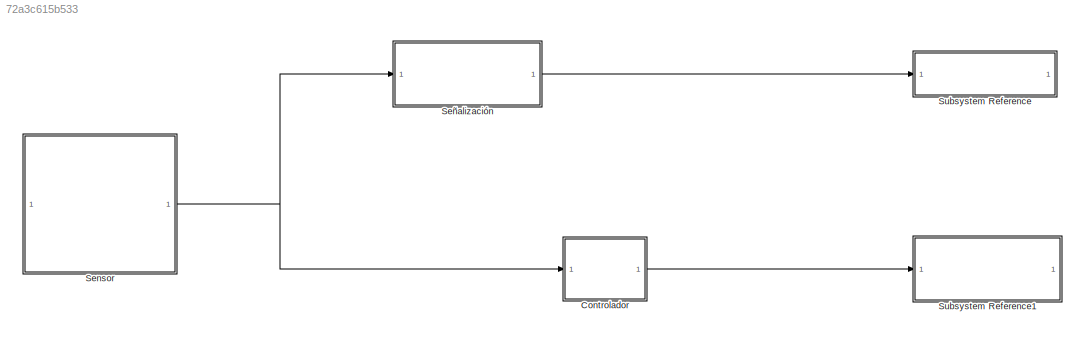
MODEL slx_72a3c615b533
KIND model
CONFIG AbsTol = auto
CONFIG EnableMultiTasking = off
CONFIG FixedStep = auto
CONFIG MaxStep = auto
CONFIG MinStep = auto
CONFIG RelTol = 1e-3
CONFIG SampleTimeConstraint = Unconstrained
CONFIG SolverName = FixedStepAuto
CONFIG StartTime = 0.0
CONFIG StopTime = inf
BLOCK [SubSystem] Controlador
  ReferencedSubsystem = Controlador
BLOCK [SubSystem] Sensor
  ReferencedSubsystem = Sensor
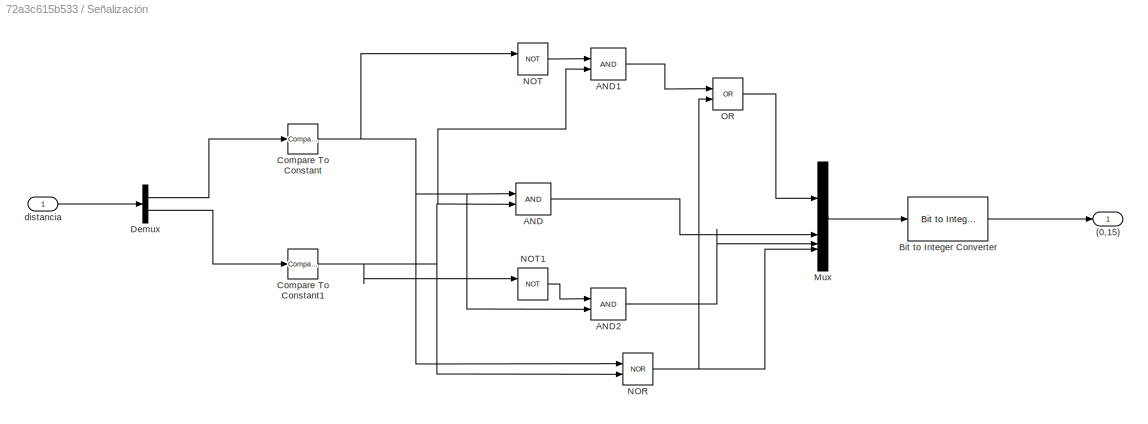
BLOCK [SubSystem] Señalización
BLOCK [Outport] Señalización/(0,15)
BLOCK [Logic] Señalización/AND
  AllPortsSameDT = off
  IconShape = distinctive
  OutDataTypeStr = boolean
BLOCK [Logic] Señalización/AND1
  AllPortsSameDT = off
  IconShape = distinctive
  OutDataTypeStr = boolean
BLOCK [Logic] Señalización/AND2
  AllPortsSameDT = off
  IconShape = distinctive
  OutDataTypeStr = boolean
BLOCK [Reference] Señalización/Bit to Integer Converter  REF=simulink/Logic and Bit
Operations/Bit to Integer
Converter
  SourceBlock = simulink/Logic and Bit\nOperations/Bit to Integer\nConverter
  SourceType = Bit to Integer Converter
BLOCK [Reference] Señalización/Compare To Constant  REF=simulink/Logic and Bit
Operations/Compare
To Constant
  SourceBlock = simulink/Logic and Bit\nOperations/Compare\nTo Constant
  SourceType = Compare To Constant
BLOCK [Reference] Señalización/Compare To Constant1  REF=simulink/Logic and Bit
Operations/Compare
To Constant
  SourceBlock = simulink/Logic and Bit\nOperations/Compare\nTo Constant
  SourceType = Compare To Constant
BLOCK [Demux] Señalización/Demux
  Outputs = 2
BLOCK [Mux] Señalización/Mux
  DisplayOption = bar
BLOCK [Logic] Señalización/NOR
  AllPortsSameDT = off
  IconShape = distinctive
  Operator = NOR
  OutDataTypeStr = boolean
BLOCK [Logic] Señalización/NOT
  AllPortsSameDT = off
  IconShape = distinctive
  Operator = NOT
  OutDataTypeStr = boolean
BLOCK [Logic] Señalización/NOT1
  AllPortsSameDT = off
  IconShape = distinctive
  Operator = NOT
  OutDataTypeStr = boolean
BLOCK [Logic] Señalización/OR
  AllPortsSameDT = off
  IconShape = distinctive
  Operator = OR
  OutDataTypeStr = boolean
BLOCK [Inport] Señalización/distancia
BLOCK [SubSystem] Subsystem Reference
  ReferencedSubsystem = subsysLED
BLOCK [SubSystem] Subsystem Reference1
  ReferencedSubsystem = susbysmotor
LINE Controlador:1 -> Subsystem Reference1:1
NET Sensor:1 -> Controlador:1, Señalización:1
LINE Señalización/AND1:1 -> Señalización/OR:1
LINE Señalización/AND2:1 -> Señalización/Mux:3
LINE Señalización/AND:1 -> Señalización/Mux:2
LINE Señalización/Bit to Integer Converter:1 -> Señalización/(0,15):1
NET Señalización/Compare To Constant1:1 -> Señalización/AND1:2, Señalización/AND:2, Señalización/NOR:2, Señalización/NOT1:1
NET Señalización/Compare To Constant:1 -> Señalización/AND2:2, Señalización/AND:1, Señalización/NOR:1, Señalización/NOT:1
LINE Señalización/Demux:1 -> Señalización/Compare To Constant:1
LINE Señalización/Demux:2 -> Señalización/Compare To Constant1:1
LINE Señalización/Mux:1 -> Señalización/Bit to Integer Converter:1
NET Señalización/NOR:1 -> Señalización/Mux:4, Señalización/OR:2
LINE Señalización/NOT1:1 -> Señalización/AND2:1
LINE Señalización/NOT:1 -> Señalización/AND1:1
LINE Señalización/OR:1 -> Señalización/Mux:1
LINE Señalización/distancia:1 -> Señalización/Demux:1
LINE Señalización:1 -> Subsystem Reference:1
note: NET lines group one-source signal fan-out (src -> all destinations, sorted); 1:1 wires keep LINE
